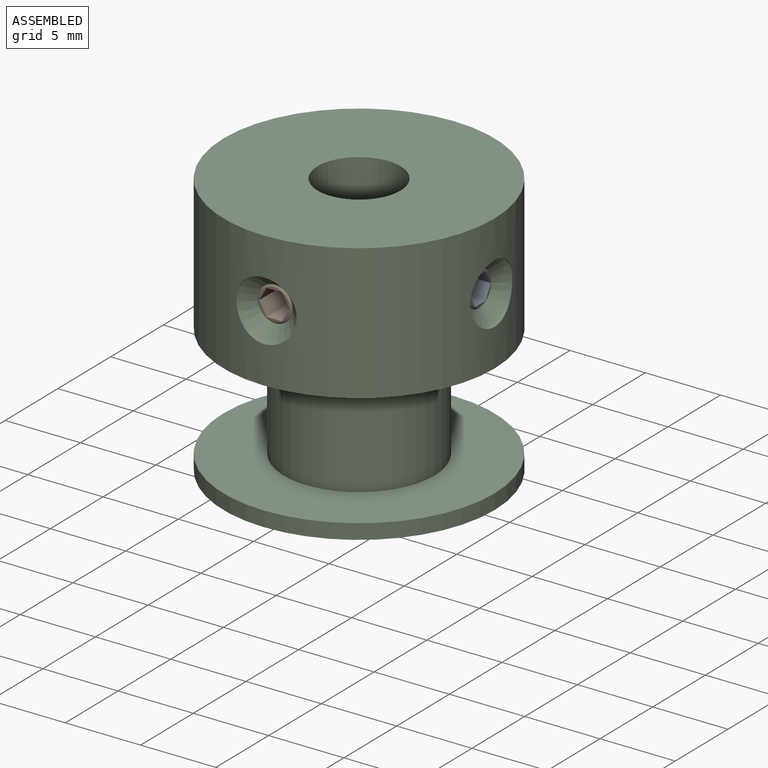
[diagram: assembled view]
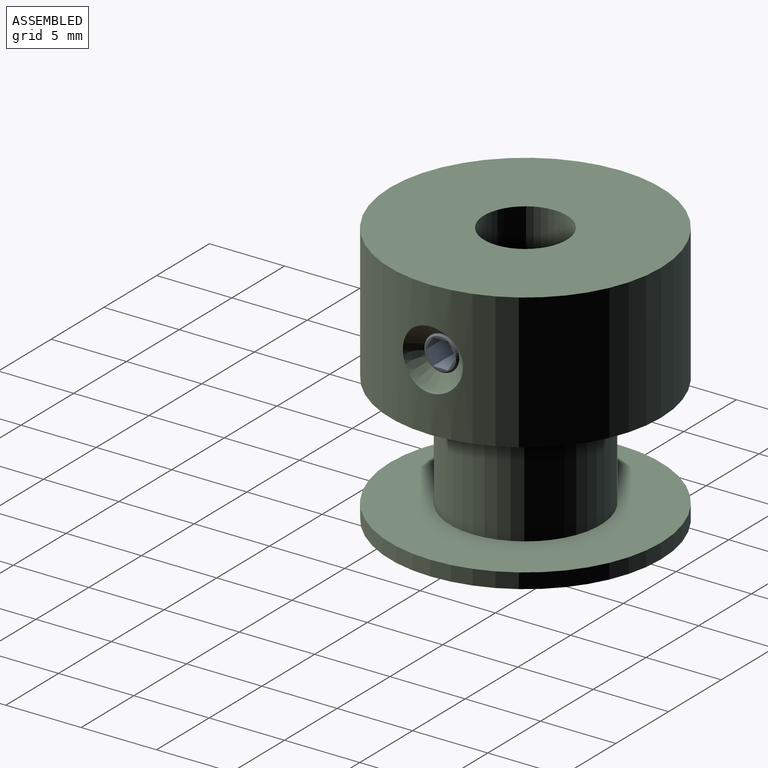
[diagram: assembled view, second angle]
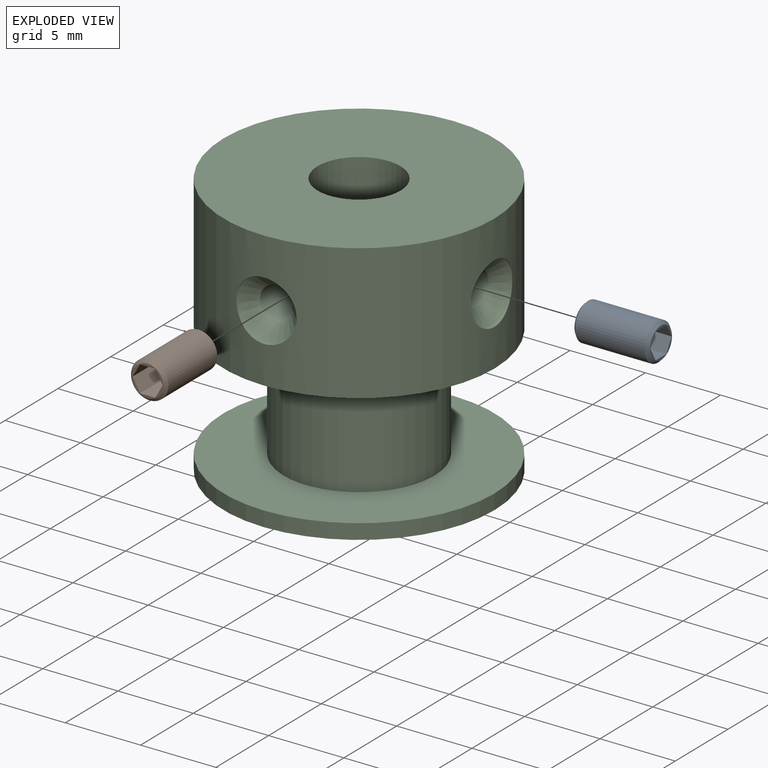
[diagram: exploded view]
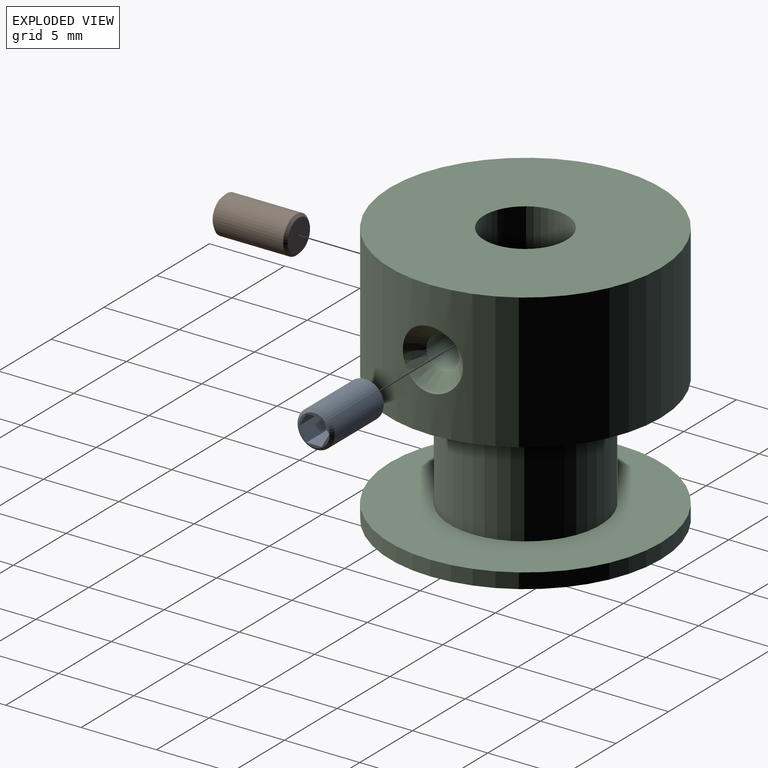
[diagram: exploded view, second angle]
ASSEMBLY  parts=3 mates=2
PART A: 12 faces, bbox 2.5x2.5x5 mm
  f0: plane 2.08x2.08mm, normal (0,0,1), area 0.8mm2, adj f4,f5,f6,f7,f8,f9,f11
  f1: cylinder r=1.24mm len=4.63mm, axis (0,0,1), area 36mm2, adj f3,f11
  f2: plane 2.13x2.13mm, normal (0,0,-1), area 3.6mm2, adj f3
  f3: cone r=1.07mm half-angle=45deg, axis (0,0,1), area 1.8mm2, adj f1,f2
  f4: plane 2x0.87mm, normal (-0.87,-0.5,0), area 2mm2, adj f0,f5,f9,f10
  f5: plane 2x0.87mm, normal (-0.87,0.5,0), area 2mm2, adj f0,f4,f6,f10
  f6: plane 2x1mm, normal (0,1,0), area 2mm2, adj f0,f5,f7,f10
  f7: plane 2x0.87mm, normal (0.87,0.5,0), area 2mm2, adj f0,f6,f8,f10
  f8: plane 2x0.87mm, normal (0.87,-0.5,0), area 2mm2, adj f0,f7,f9,f10
  f9: plane 2x1mm, normal (0,-1,0), area 2mm2, adj f0,f4,f8,f10
  f10: plane 2x1.73mm, normal (0,0,1), area 2.6mm2, adj f4,f5,f6,f7,f8,f9
  f11: cone r=1.24mm half-angle=45deg, axis (0,0,-1), area 2mm2, adj f0,f1
PART B: same geometry as A
PART C: 16 faces, bbox 18x18x17.5 mm
  f0: cylinder r=9mm len=18mm, axis (0,0,-1), area 483.6mm2, adj f3,f7,f8,f9,f12,f13
  f1: cylinder r=2.75mm len=17.5mm, axis (0,0,1), area 295mm2, adj f5,f7,f10,f15
  f2: cylinder r=5mm len=10mm, axis (0,0,-1), area 235.6mm2, adj f3,f4
  f3: plane 18x18mm, normal (0,0,-1), area 175.9mm2, adj f0,f2
  f4: plane 18x18mm, normal (0,0,1), area 175.9mm2, adj f2,f6
  f5: plane 18x18mm, normal (0,0,-1), area 230.7mm2, adj f1,f6
  f6: cylinder r=9mm len=18mm, axis (0,0,-1), area 56.5mm2, adj f4,f5
  f7: plane 18x18mm, normal (0,0,1), area 230.7mm2, adj f0,f1
  f8: cylinder r=2mm len=4mm, axis (1,0,0), area 0.7mm2, adj f0,f11
  f9: cylinder r=2mm len=4mm, axis (1,0,0), area 0.7mm2, adj f0,f11
  f10: cylinder r=1.07mm len=5.32mm, axis (1,0,0), area 35.2mm2, adj f1,f11
  f11: cone r=1.07mm half-angle=45deg, axis (1,0,0), area 12.6mm2, adj f8,f9,f10
  f12: cylinder r=2mm len=4mm, axis (0,-1,0), area 0.7mm2, adj f0,f14
  f13: cylinder r=2mm len=4mm, axis (0,-1,0), area 0.7mm2, adj f0,f14
  f14: cone r=1.07mm half-angle=45deg, axis (0,-1,0), area 12.6mm2, adj f12,f13,f15
  f15: cylinder r=1.07mm len=5.32mm, axis (0,-1,0), area 35.2mm2, adj f1,f14
PLACE A rot(axis=(-0.58,0.58,-0.58),120deg) t=(8.05,-30.48,-22.84)mm
PLACE B rot(axis=(1,0,0),90deg) t=(30.48,-8.05,39.34)mm
PLACE C at identity fixed
MATE fastened B.f1 <-> C.f12  axis (0,-1,0) through (0,-7.85,8.25)mm
MATE fastened A.f1 <-> C.f8  axis (1,0,0) through (7.85,0,8.25)mm
